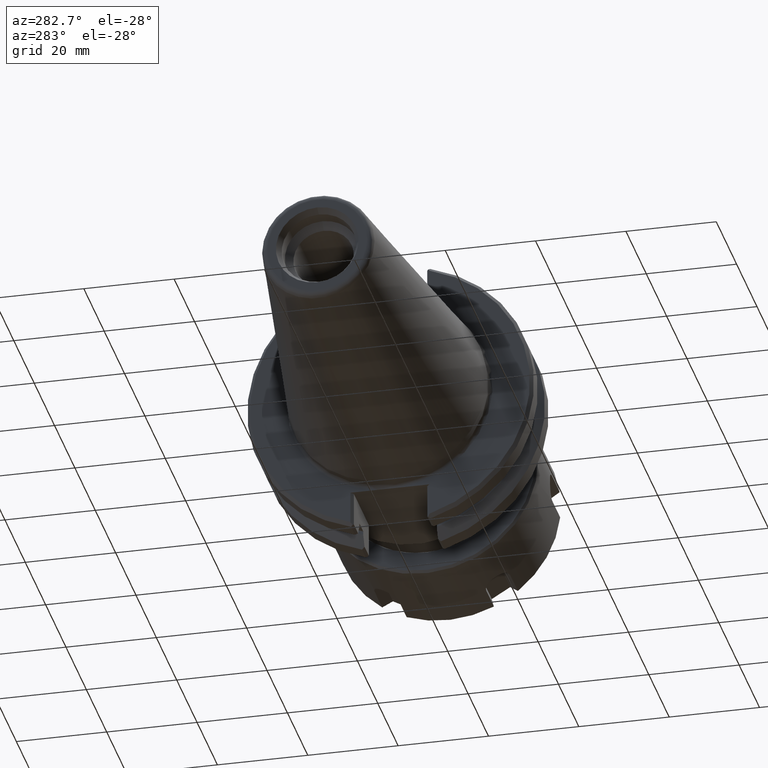
[diagram: clean part render]
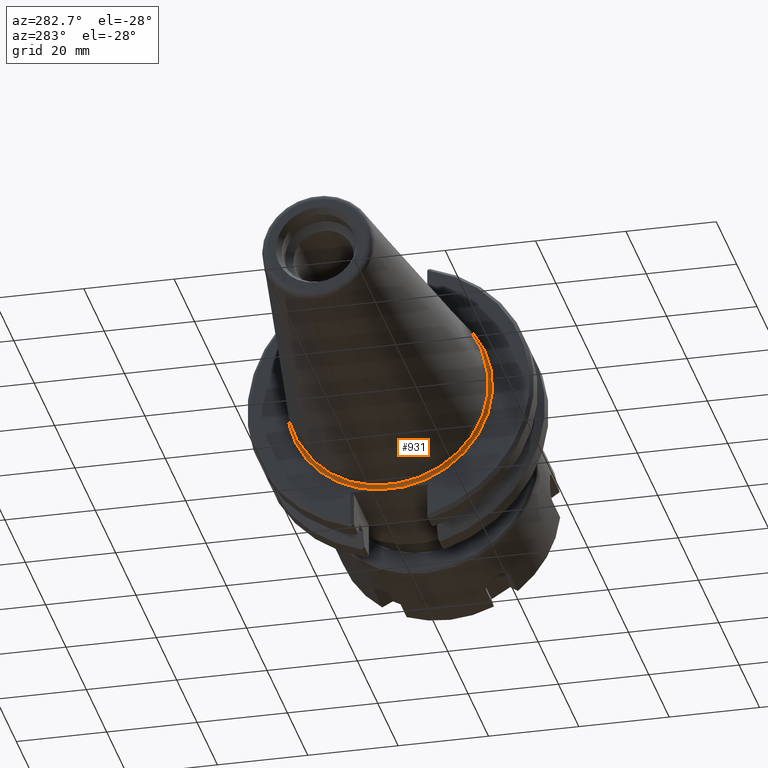
[diagram: same view with one face highlighted and labeled with its STEP entity id]
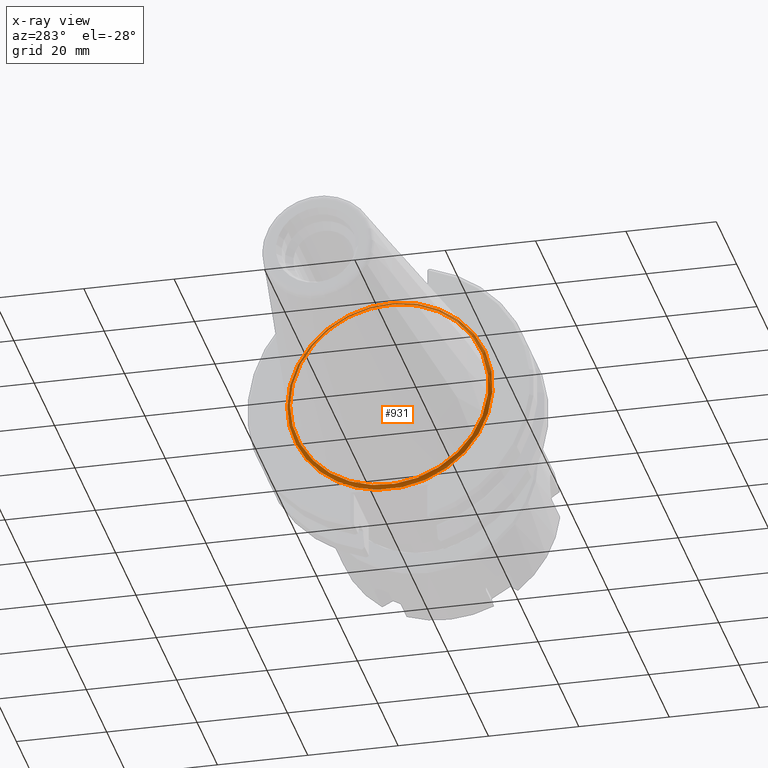
[diagram: x-ray of the same camera — body ghosted, the highlighted face saturated]
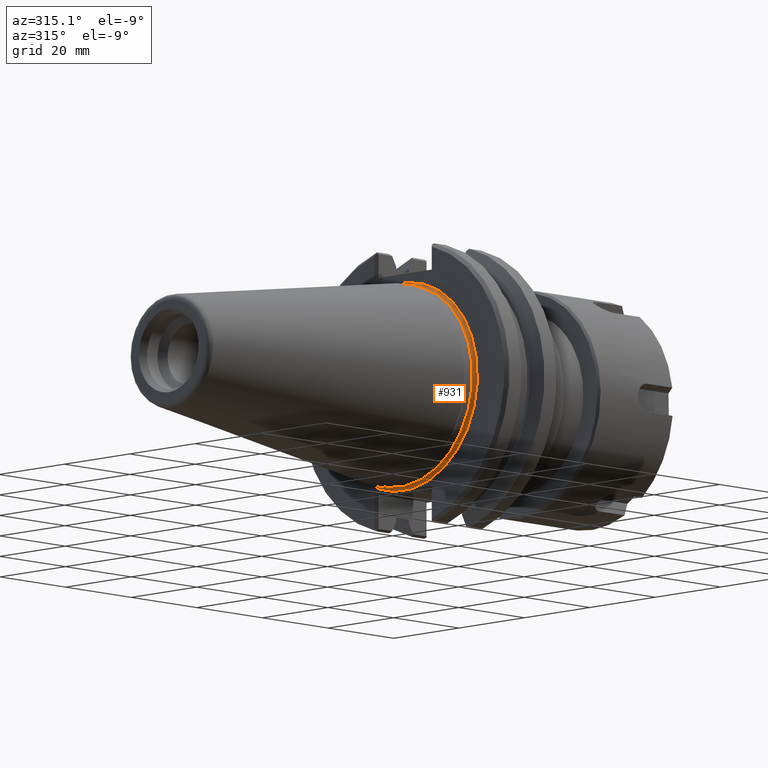
[diagram: same view with one face highlighted and labeled with its STEP entity id]
A machine part, auxiliary view. The second image highlights one B-rep face of the part: STEP entity #931.
The next image is the same camera in x-ray: the body ghosted, the highlighted face saturated — about 20% of this face is hidden behind the body in this view.
A second angle (auxiliary view) of the same face is appended — the face is thin or edge-on in the first view.
In plain terms, the highlighted toroidal blend (fillet) surface has major radius 22.733 mm and minor (blend) radius 0.762 mm.
Its self-contained STEP definition (entity closure, byte-faithful):
#888=CARTESIAN_POINT('',(0.095,0.0,0.0));
#889=DIRECTION('',(-1.0,0.0,0.0));
#890=DIRECTION('',(0.0,0.0,1.0));
#891=AXIS2_PLACEMENT_3D('',#888,#889,#890);
#892=TOROIDAL_SURFACE('',#891,0.895,0.03);
#893=CARTESIAN_POINT('',(0.125,-0.11171839597846,-0.888));
#894=VERTEX_POINT('',#893);
#895=CARTESIAN_POINT('',(0.125,0.11171839597846,-0.888));
#896=VERTEX_POINT('',#895);
#897=CARTESIAN_POINT('',(0.125,0.11171839597846,-0.888));
#898=CARTESIAN_POINT('',(0.125,0.101382060526646,-0.888));
#899=CARTESIAN_POINT('',(0.12490012078969,0.088978860126441,-0.888));
#900=CARTESIAN_POINT('',(0.124535784579865,0.054067341164243,-0.888));
#901=CARTESIAN_POINT('',(0.12417190429163,0.024577084562869,-0.888));
#902=CARTESIAN_POINT('',(0.12417190429163,0.0,-0.888));
#903=CARTESIAN_POINT('',(0.12417190429163,-0.024577084562869,-0.888));
#904=CARTESIAN_POINT('',(0.124535784579865,-0.054067341164243,-0.888));
#905=CARTESIAN_POINT('',(0.12490012078969,-0.088978860126441,-0.888));
#906=CARTESIAN_POINT('',(0.125,-0.101382060526646,-0.888));
#907=CARTESIAN_POINT('',(0.125,-0.11171839597846,-0.888));
#908=B_SPLINE_CURVE_WITH_KNOTS('',3,(#897,#898,#899,#900,#901,#902,#903,#904,#905,#906,#907),.UNSPECIFIED.,.F.,.U.,(4,2,3,2,4),(2.310521099154615,2.389283975297438,2.576561359666502,2.763838744035566,2.842601620178389),.UNSPECIFIED.);
#909=EDGE_CURVE('',#894,#896,#908,.F.);
#910=ORIENTED_EDGE('',*,*,#909,.F.);
#911=CARTESIAN_POINT('',(0.125,0.0,0.0));
#912=DIRECTION('',(-1.0,0.0,0.0));
#913=DIRECTION('',(0.0,-1.0,0.0));
#914=AXIS2_PLACEMENT_3D('',#911,#912,#913);
#915=CIRCLE('',#914,0.895);
#916=EDGE_CURVE('',#894,#896,#915,.T.);
#917=ORIENTED_EDGE('',*,*,#916,.T.);
#918=EDGE_LOOP('',(#910,#917));
#919=FACE_OUTER_BOUND('',#918,.T.);
#920=CARTESIAN_POINT('',(0.095,0.865,2.118639E-016));
#921=VERTEX_POINT('',#920);
#922=CARTESIAN_POINT('',(0.095,0.0,0.0));
#923=DIRECTION('',(1.0,0.0,0.0));
#924=DIRECTION('',(0.0,-1.0,0.0));
#925=AXIS2_PLACEMENT_3D('',#922,#923,#924);
#926=CIRCLE('',#925,0.865);
#927=EDGE_CURVE('',#921,#921,#926,.T.);
#928=ORIENTED_EDGE('',*,*,#927,.T.);
#929=EDGE_LOOP('',(#928));
#930=FACE_BOUND('',#929,.T.);
#931=ADVANCED_FACE('',(#919,#930),#892,.F.);